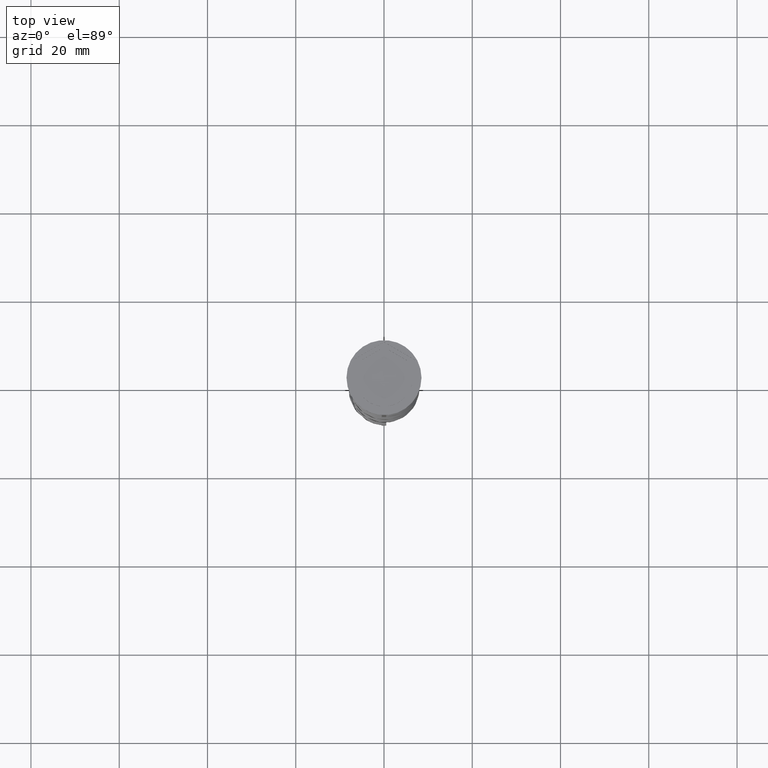
[diagram: clean part render]
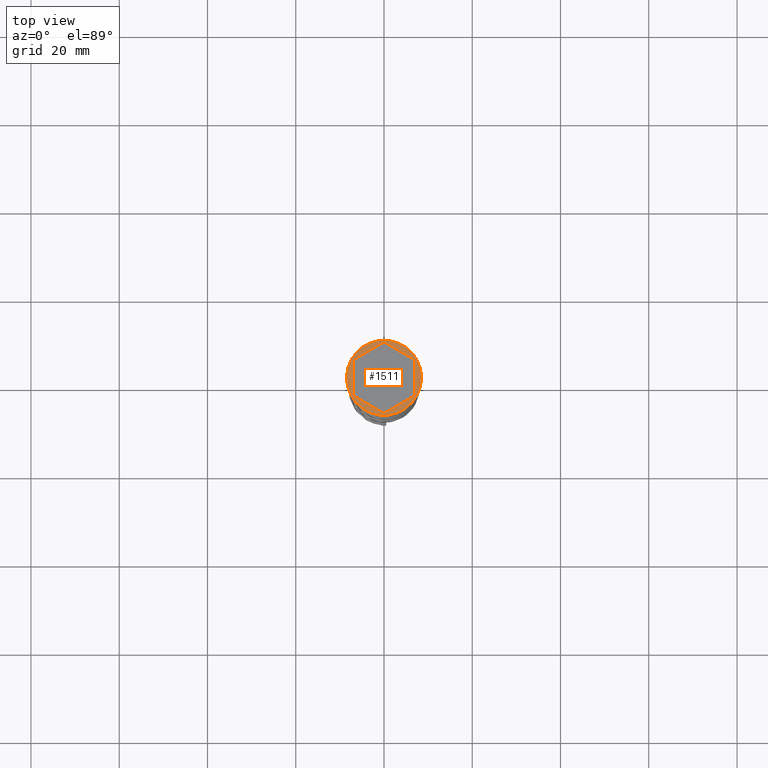
[diagram: same view with one face highlighted and labeled with its STEP entity id]
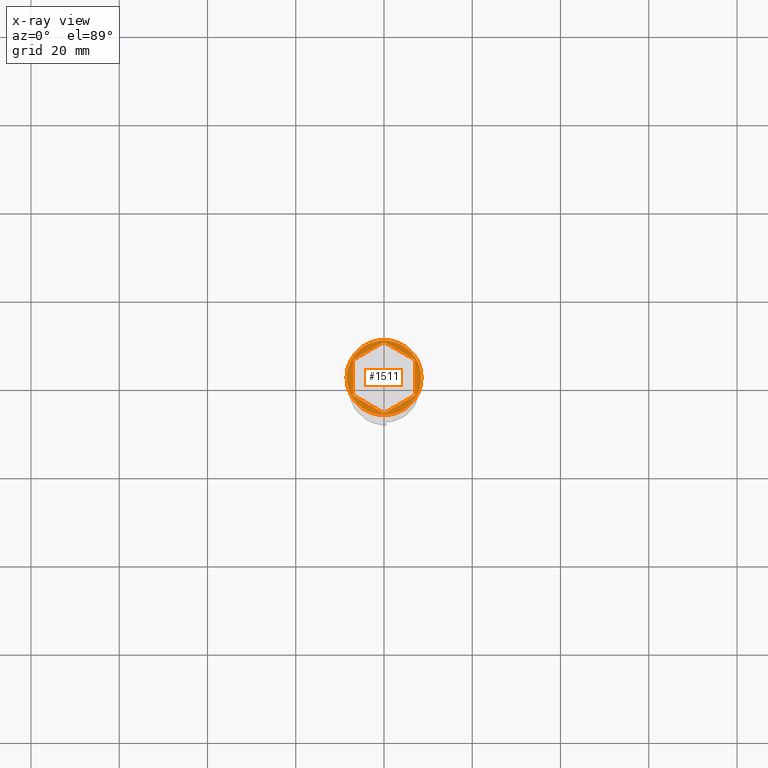
[diagram: x-ray of the same camera — body ghosted, the highlighted face saturated]
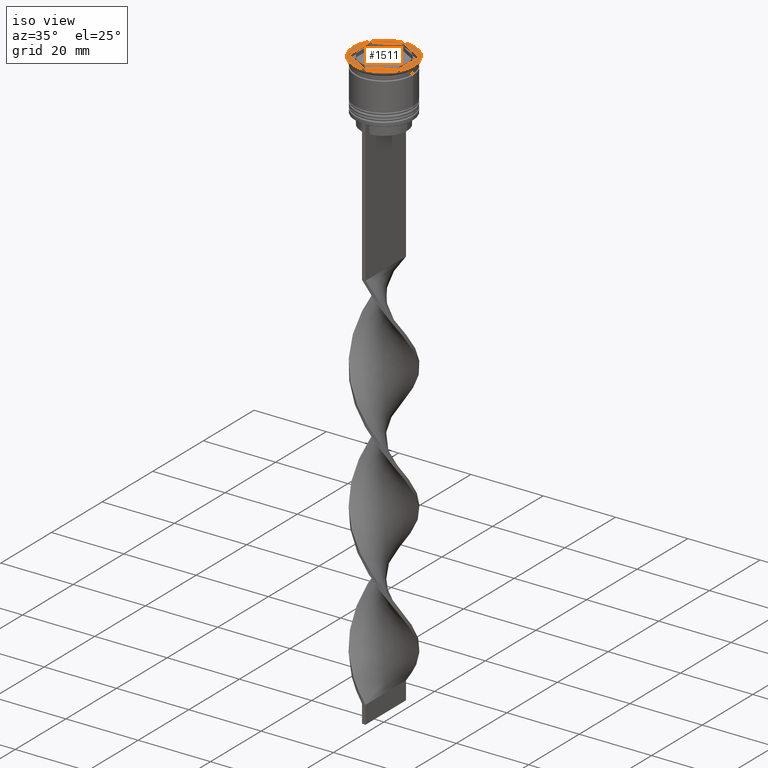
[diagram: same view with one face highlighted and labeled with its STEP entity id]
A machine part, top view. The second image highlights one B-rep face of the part: STEP entity #1511.
The next image is the same camera in x-ray: the body ghosted, the highlighted face saturated — about 0% of this face is hidden behind the body in this view.
A second angle (iso view) of the same face is appended — the face is thin or edge-on in the first view.
In plain terms, the highlighted planar face has unit normal (0, -0, 1).
Its self-contained STEP definition (entity closure, byte-faithful):
#27 = CARTESIAN_POINT ( 'NONE',  ( -7.000000000000000888, -4.041451884327381450, 0.000000000000000000 ) ) ;
#41 = VERTEX_POINT ( 'NONE', #2512 ) ;
#90 = CIRCLE ( 'NONE', #2086, 8.500000000000000000 ) ;
#175 = CARTESIAN_POINT ( 'NONE',  ( 7.000000000000000888, 4.041451884327382338, 0.000000000000000000 ) ) ;
#215 = FACE_BOUND ( 'NONE', #807, .T. ) ;
#276 = CARTESIAN_POINT ( 'NONE',  ( 0.000000000000000000, 8.082903768654762899, 0.000000000000000000 ) ) ;
#347 = LINE ( 'NONE', #27, #2686 ) ;
#375 = VERTEX_POINT ( 'NONE', #2308 ) ;
#509 = AXIS2_PLACEMENT_3D ( 'NONE', #1553, #736, #1835 ) ;
#544 = FACE_OUTER_BOUND ( 'NONE', #1249, .T. ) ;
#553 = ORIENTED_EDGE ( 'NONE', *, *, #2158, .T. ) ;
#585 = DIRECTION ( 'NONE',  ( 1.073081856240827703E-16, 1.000000000000000000, 0.000000000000000000 ) ) ;
#627 = EDGE_CURVE ( 'NONE', #41, #2999, #2253, .T. ) ;
#652 = DIRECTION ( 'NONE',  ( -0.8660254037844387076, 0.4999999999999998890, 0.000000000000000000 ) ) ;
#736 = DIRECTION ( 'NONE',  ( -0.000000000000000000, -0.000000000000000000, 1.000000000000000000 ) ) ;
#781 = VECTOR ( 'NONE', #2962, 1000.000000000000114 ) ;
#806 = PLANE ( 'NONE',  #3045 ) ;
#807 = EDGE_LOOP ( 'NONE', ( #2874, #1673, #3005, #1065, #2451, #2155 ) ) ;
#823 = CARTESIAN_POINT ( 'NONE',  ( 0.000000000000000000, 0.000000000000000000, 0.000000000000000000 ) ) ;
#879 = LINE ( 'NONE', #2017, #3052 ) ;
#908 = CARTESIAN_POINT ( 'NONE',  ( 7.000000000000000000, -4.041451884327381450, 0.000000000000000000 ) ) ;
#1020 = DIRECTION ( 'NONE',  ( 1.000000000000000000, 0.000000000000000000, 0.000000000000000000 ) ) ;
#1028 = CARTESIAN_POINT ( 'NONE',  ( -7.000000000000000888, 4.041451884327381450, 0.000000000000000000 ) ) ;
#1056 = VERTEX_POINT ( 'NONE', #908 ) ;
#1065 = ORIENTED_EDGE ( 'NONE', *, *, #2585, .F. ) ;
#1072 = CARTESIAN_POINT ( 'NONE',  ( 2.174016704710901386E-15, -8.082903768654762899, 0.000000000000000000 ) ) ;
#1249 = EDGE_LOOP ( 'NONE', ( #553, #3291 ) ) ;
#1295 = DIRECTION ( 'NONE',  ( -0.000000000000000000, -0.000000000000000000, 1.000000000000000000 ) ) ;
#1322 = VECTOR ( 'NONE', #652, 1000.000000000000114 ) ;
#1365 = CARTESIAN_POINT ( 'NONE',  ( 2.174016704710901386E-15, -8.082903768654762899, 0.000000000000000000 ) ) ;
#1511 = ADVANCED_FACE ( 'NONE', ( #215, #544 ), #806, .T. ) ;
#1515 = EDGE_CURVE ( 'NONE', #3738, #1056, #1701, .T. ) ;
#1525 = VERTEX_POINT ( 'NONE', #3674 ) ;
#1553 = CARTESIAN_POINT ( 'NONE',  ( 0.000000000000000000, 0.000000000000000000, 0.000000000000000000 ) ) ;
#1573 = VERTEX_POINT ( 'NONE', #175 ) ;
#1673 = ORIENTED_EDGE ( 'NONE', *, *, #2738, .F. ) ;
#1685 = DIRECTION ( 'NONE',  ( 0.8660254037844384856, 0.5000000000000001110, 0.000000000000000000 ) ) ;
#1701 = LINE ( 'NONE', #1365, #2740 ) ;
#1835 = DIRECTION ( 'NONE',  ( 1.000000000000000000, 0.000000000000000000, 0.000000000000000000 ) ) ;
#1863 = VECTOR ( 'NONE', #2724, 1000.000000000000000 ) ;
#2017 = CARTESIAN_POINT ( 'NONE',  ( 7.000000000000000000, -4.041451884327381450, 0.000000000000000000 ) ) ;
#2086 = AXIS2_PLACEMENT_3D ( 'NONE', #2491, #1295, #1020 ) ;
#2155 = ORIENTED_EDGE ( 'NONE', *, *, #3426, .F. ) ;
#2158 = EDGE_CURVE ( 'NONE', #2999, #41, #90, .T. ) ;
#2170 = CARTESIAN_POINT ( 'NONE',  ( 8.500000000000000000, 0.000000000000000000, 0.000000000000000000 ) ) ;
#2219 = DIRECTION ( 'NONE',  ( 0.000000000000000000, -0.000000000000000000, 1.000000000000000000 ) ) ;
#2253 = CIRCLE ( 'NONE', #509, 8.500000000000000000 ) ;
#2308 = CARTESIAN_POINT ( 'NONE',  ( -7.000000000000000888, 4.041451884327381450, 0.000000000000000000 ) ) ;
#2417 = LINE ( 'NONE', #2682, #781 ) ;
#2451 = ORIENTED_EDGE ( 'NONE', *, *, #2786, .F. ) ;
#2491 = CARTESIAN_POINT ( 'NONE',  ( 0.000000000000000000, 0.000000000000000000, 0.000000000000000000 ) ) ;
#2512 = CARTESIAN_POINT ( 'NONE',  ( -8.500000000000000000, 1.040949779275250140E-15, 0.000000000000000000 ) ) ;
#2540 = DIRECTION ( 'NONE',  ( 1.000000000000000000, 0.000000000000000000, 0.000000000000000000 ) ) ;
#2585 = EDGE_CURVE ( 'NONE', #1525, #3738, #347, .T. ) ;
#2682 = CARTESIAN_POINT ( 'NONE',  ( 0.000000000000000000, 8.082903768654762899, 0.000000000000000000 ) ) ;
#2686 = VECTOR ( 'NONE', #3502, 1000.000000000000114 ) ;
#2703 = LINE ( 'NONE', #3578, #1322 ) ;
#2724 = DIRECTION ( 'NONE',  ( 0.000000000000000000, -1.000000000000000000, 0.000000000000000000 ) ) ;
#2738 = EDGE_CURVE ( 'NONE', #1056, #1573, #879, .T. ) ;
#2740 = VECTOR ( 'NONE', #1685, 1000.000000000000227 ) ;
#2786 = EDGE_CURVE ( 'NONE', #375, #1525, #3585, .T. ) ;
#2874 = ORIENTED_EDGE ( 'NONE', *, *, #3394, .F. ) ;
#2962 = DIRECTION ( 'NONE',  ( -0.8660254037844385966, -0.4999999999999999445, 0.000000000000000000 ) ) ;
#2999 = VERTEX_POINT ( 'NONE', #2170 ) ;
#3005 = ORIENTED_EDGE ( 'NONE', *, *, #1515, .F. ) ;
#3045 = AXIS2_PLACEMENT_3D ( 'NONE', #823, #2219, #2540 ) ;
#3052 = VECTOR ( 'NONE', #585, 1000.000000000000000 ) ;
#3291 = ORIENTED_EDGE ( 'NONE', *, *, #627, .T. ) ;
#3394 = EDGE_CURVE ( 'NONE', #1573, #3584, #2703, .T. ) ;
#3426 = EDGE_CURVE ( 'NONE', #3584, #375, #2417, .T. ) ;
#3502 = DIRECTION ( 'NONE',  ( 0.8660254037844387076, -0.4999999999999997224, 0.000000000000000000 ) ) ;
#3578 = CARTESIAN_POINT ( 'NONE',  ( 7.000000000000000888, 4.041451884327382338, 0.000000000000000000 ) ) ;
#3584 = VERTEX_POINT ( 'NONE', #276 ) ;
#3585 = LINE ( 'NONE', #1028, #1863 ) ;
#3674 = CARTESIAN_POINT ( 'NONE',  ( -7.000000000000000888, -4.041451884327381450, 0.000000000000000000 ) ) ;
#3738 = VERTEX_POINT ( 'NONE', #1072 ) ;